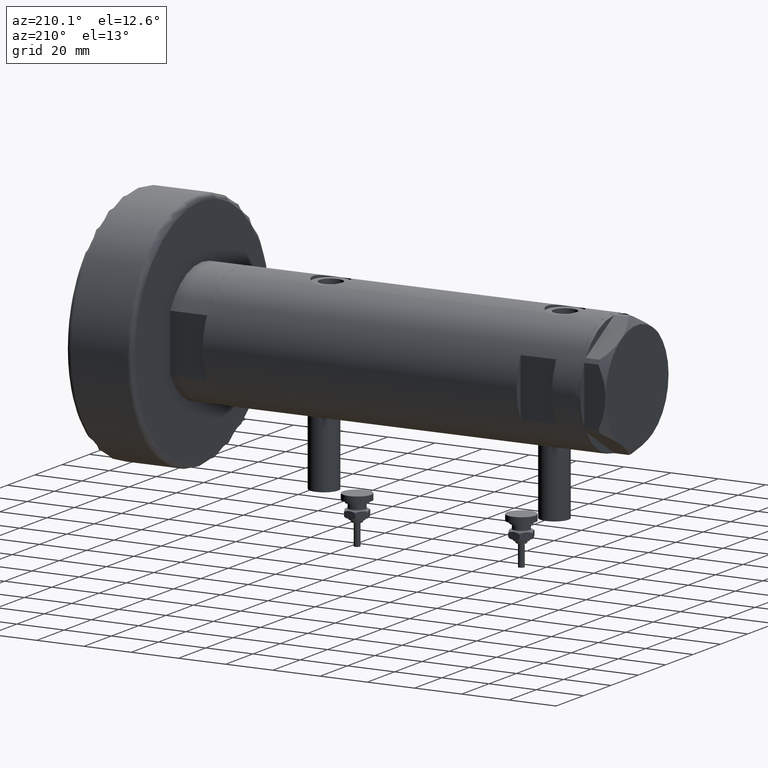
[diagram: clean part render]
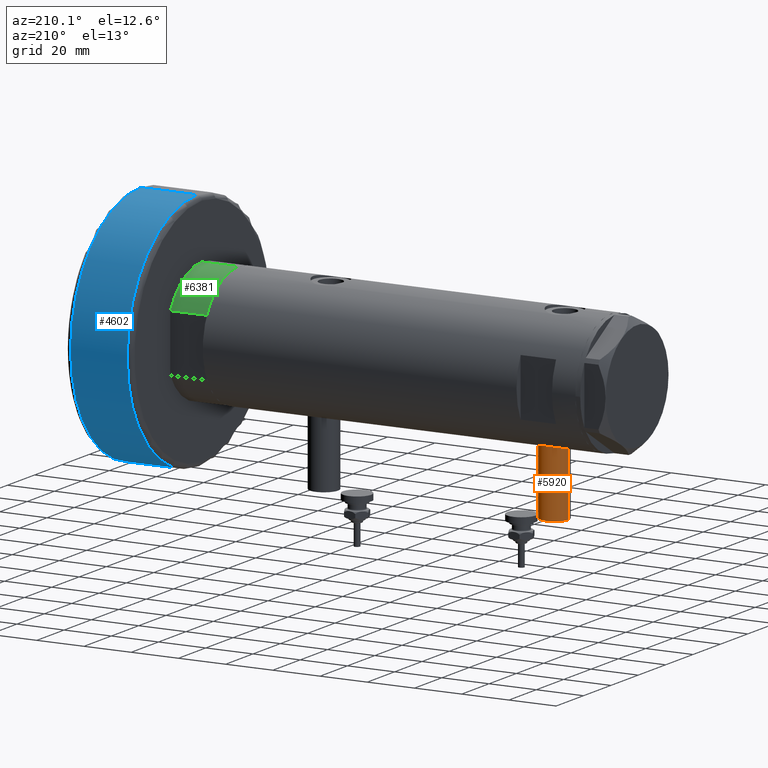
[diagram: same view with three faces highlighted in distinct colors, each labeled with its STEP entity id]
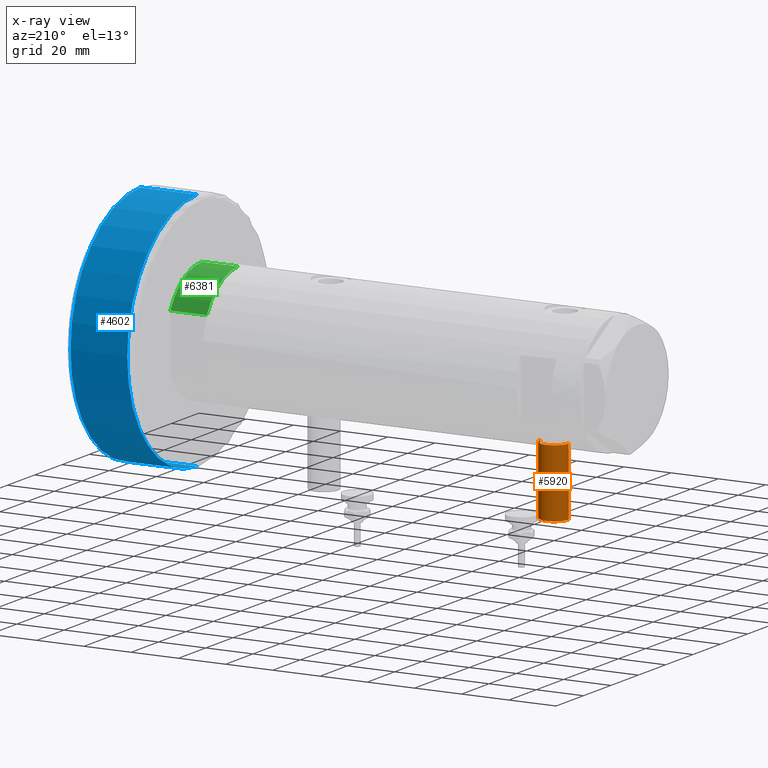
[diagram: x-ray of the same camera — body ghosted, the three highlighted faces saturated]
A machine part, auxiliary view with three faces highlighted in distinct colors.
The next image is the same camera in x-ray (body ghosted, the three faces saturated) — at least one of them is partly hidden behind the body in this view.
Their STEP definitions:

[orange] entity #5920 — the highlighted cylindrical surface (edge-blend (fillet) strip) has radius 6 mm, axis along (0, 0, 1).
#23 = EDGE_LOOP ( 'NONE', ( #6579, #2632, #2439, #6686 ) ) ;
#171 = DIRECTION ( 'NONE',  ( 1.000000000000000000, -0.000000000000000000, -0.000000000000000000 ) ) ;
#232 = LINE ( 'NONE', #2305, #5017 ) ;
#376 = VERTEX_POINT ( 'NONE', #3281 ) ;
#757 = FACE_OUTER_BOUND ( 'NONE', #23, .T. ) ;
#1031 = EDGE_CURVE ( 'NONE', #4304, #2868, #5766, .T. ) ;
#1394 = DIRECTION ( 'NONE',  ( 0.000000000000000000, 0.000000000000000000, 1.000000000000000000 ) ) ;
#1824 = DIRECTION ( 'NONE',  ( 1.000000000000000000, -0.000000000000000000, -0.000000000000000000 ) ) ;
#1873 = VECTOR ( 'NONE', #5813, 1000.000000000000000 ) ;
#1916 = DIRECTION ( 'NONE',  ( -1.000000000000000000, 0.000000000000000000, 0.000000000000000000 ) ) ;
#1925 = CARTESIAN_POINT ( 'NONE',  ( -24.80000000000000426, 0.000000000000000000, 48.95000000000000995 ) ) ;
#2305 = CARTESIAN_POINT ( 'NONE',  ( -53.40000000000000568, 7.347880794884112834E-16, 60.95000000000000284 ) ) ;
#2439 = ORIENTED_EDGE ( 'NONE', *, *, #1031, .T. ) ;
#2632 = ORIENTED_EDGE ( 'NONE', *, *, #4922, .T. ) ;
#2796 = EDGE_CURVE ( 'NONE', #4741, #2868, #2863, .T. ) ;
#2863 = LINE ( 'NONE', #3739, #1873 ) ;
#2868 = VERTEX_POINT ( 'NONE', #1925 ) ;
#2871 = AXIS2_PLACEMENT_3D ( 'NONE', #4057, #1824, #6132 ) ;
#3156 = CARTESIAN_POINT ( 'NONE',  ( -53.40000000000000568, 0.000000000000000000, 48.95000000000000995 ) ) ;
#3281 = CARTESIAN_POINT ( 'NONE',  ( -53.40000000000000568, 7.347880794884108889E-16, 60.95000000000000284 ) ) ;
#3358 = DIRECTION ( 'NONE',  ( -1.000000000000000000, 0.000000000000000000, 0.000000000000000000 ) ) ;
#3739 = CARTESIAN_POINT ( 'NONE',  ( -53.40000000000000568, 0.000000000000000000, 48.95000000000000995 ) ) ;
#3761 = CARTESIAN_POINT ( 'NONE',  ( -53.40000000000000568, 0.000000000000000000, 54.95000000000000284 ) ) ;
#3862 = CARTESIAN_POINT ( 'NONE',  ( -24.80000000000000426, 0.000000000000000000, 54.95000000000000284 ) ) ;
#4057 = CARTESIAN_POINT ( 'NONE',  ( -53.40000000000000568, 0.000000000000000000, 54.95000000000000284 ) ) ;
#4299 = DIRECTION ( 'NONE',  ( 0.000000000000000000, 0.000000000000000000, 1.000000000000000000 ) ) ;
#4304 = VERTEX_POINT ( 'NONE', #5087 ) ;
#4741 = VERTEX_POINT ( 'NONE', #3156 ) ;
#4922 = EDGE_CURVE ( 'NONE', #376, #4304, #232, .T. ) ;
#5017 = VECTOR ( 'NONE', #171, 1000.000000000000000 ) ;
#5087 = CARTESIAN_POINT ( 'NONE',  ( -24.80000000000000426, 7.347880794884108889E-16, 60.95000000000000284 ) ) ;
#5111 = AXIS2_PLACEMENT_3D ( 'NONE', #3862, #1916, #1394 ) ;
#5253 = CIRCLE ( 'NONE', #5682, 5.999999999999998224 ) ;
#5682 = AXIS2_PLACEMENT_3D ( 'NONE', #3761, #3358, #4299 ) ;
#5766 = CIRCLE ( 'NONE', #5111, 5.999999999999998224 ) ;
#5813 = DIRECTION ( 'NONE',  ( 1.000000000000000000, -0.000000000000000000, -0.000000000000000000 ) ) ;
#5920 = ADVANCED_FACE ( 'NONE', ( #757 ), #6641, .T. ) ;
#6132 = DIRECTION ( 'NONE',  ( 0.000000000000000000, 0.000000000000000000, -1.000000000000000000 ) ) ;
#6183 = EDGE_CURVE ( 'NONE', #376, #4741, #5253, .T. ) ;
#6579 = ORIENTED_EDGE ( 'NONE', *, *, #6183, .F. ) ;
#6641 = CYLINDRICAL_SURFACE ( 'NONE', #2871, 5.999999999999998224 ) ;
#6686 = ORIENTED_EDGE ( 'NONE', *, *, #2796, .F. ) ;

[blue] entity #4602 — the highlighted cylindrical surface (partial cylindrical patch) has radius 51 mm, axis along (-1, -0, 0).
#484 = DIRECTION ( 'NONE',  ( -0.000000000000000000, -0.000000000000000000, -1.000000000000000000 ) ) ;
#666 = ORIENTED_EDGE ( 'NONE', *, *, #1488, .T. ) ;
#680 = AXIS2_PLACEMENT_3D ( 'NONE', #5494, #6552, #3519 ) ;
#788 = CIRCLE ( 'NONE', #680, 50.99999999999999289 ) ;
#897 = CARTESIAN_POINT ( 'NONE',  ( 0.000000000000000000, 0.000000000000000000, 1.999999999999998224 ) ) ;
#905 = VERTEX_POINT ( 'NONE', #3330 ) ;
#958 = VERTEX_POINT ( 'NONE', #5804 ) ;
#1001 = CARTESIAN_POINT ( 'NONE',  ( 50.99999999999999289, 6.245698675651499656E-15, 28.00000000000000000 ) ) ;
#1092 = VERTEX_POINT ( 'NONE', #1364 ) ;
#1102 = EDGE_CURVE ( 'NONE', #905, #5722, #788, .T. ) ;
#1364 = CARTESIAN_POINT ( 'NONE',  ( -50.99999999999999289, 0.000000000000000000, 1.999999999999998224 ) ) ;
#1488 = EDGE_CURVE ( 'NONE', #5722, #958, #2569, .T. ) ;
#1735 = VECTOR ( 'NONE', #484, 1000.000000000000000 ) ;
#1988 = VECTOR ( 'NONE', #6119, 1000.000000000000000 ) ;
#2026 = CARTESIAN_POINT ( 'NONE',  ( 50.99999999999999289, 6.245698675651499656E-15, 26.00000000000000355 ) ) ;
#2067 = EDGE_CURVE ( 'NONE', #905, #1092, #5672, .T. ) ;
#2569 = LINE ( 'NONE', #1001, #1988 ) ;
#2668 = DIRECTION ( 'NONE',  ( -0.000000000000000000, -0.000000000000000000, -1.000000000000000000 ) ) ;
#2971 = DIRECTION ( 'NONE',  ( 0.000000000000000000, 0.000000000000000000, 1.000000000000000000 ) ) ;
#3067 = CARTESIAN_POINT ( 'NONE',  ( 0.000000000000000000, 0.000000000000000000, 28.00000000000000000 ) ) ;
#3099 = CIRCLE ( 'NONE', #6455, 50.99999999999999289 ) ;
#3330 = CARTESIAN_POINT ( 'NONE',  ( -50.99999999999999289, 0.000000000000000000, 26.00000000000000355 ) ) ;
#3519 = DIRECTION ( 'NONE',  ( 1.000000000000000000, 0.000000000000000000, 0.000000000000000000 ) ) ;
#3642 = CYLINDRICAL_SURFACE ( 'NONE', #4566, 50.99999999999999289 ) ;
#3702 = DIRECTION ( 'NONE',  ( -1.000000000000000000, 0.000000000000000000, 0.000000000000000000 ) ) ;
#3909 = DIRECTION ( 'NONE',  ( 1.000000000000000000, 0.000000000000000000, 0.000000000000000000 ) ) ;
#4533 = ORIENTED_EDGE ( 'NONE', *, *, #6604, .T. ) ;
#4566 = AXIS2_PLACEMENT_3D ( 'NONE', #3067, #2668, #3702 ) ;
#4602 = ADVANCED_FACE ( 'NONE', ( #5709 ), #3642, .T. ) ;
#4609 = CARTESIAN_POINT ( 'NONE',  ( -50.99999999999999289, 0.000000000000000000, 28.00000000000000000 ) ) ;
#4856 = EDGE_LOOP ( 'NONE', ( #5412, #666, #4533, #6683 ) ) ;
#5412 = ORIENTED_EDGE ( 'NONE', *, *, #1102, .T. ) ;
#5494 = CARTESIAN_POINT ( 'NONE',  ( 0.000000000000000000, 0.000000000000000000, 26.00000000000000355 ) ) ;
#5672 = LINE ( 'NONE', #4609, #1735 ) ;
#5709 = FACE_OUTER_BOUND ( 'NONE', #4856, .T. ) ;
#5722 = VERTEX_POINT ( 'NONE', #2026 ) ;
#5804 = CARTESIAN_POINT ( 'NONE',  ( 50.99999999999999289, 6.245698675651499656E-15, 1.999999999999998224 ) ) ;
#6119 = DIRECTION ( 'NONE',  ( -0.000000000000000000, -0.000000000000000000, -1.000000000000000000 ) ) ;
#6455 = AXIS2_PLACEMENT_3D ( 'NONE', #897, #2971, #3909 ) ;
#6552 = DIRECTION ( 'NONE',  ( -0.000000000000000000, -0.000000000000000000, -1.000000000000000000 ) ) ;
#6604 = EDGE_CURVE ( 'NONE', #958, #1092, #3099, .T. ) ;
#6683 = ORIENTED_EDGE ( 'NONE', *, *, #2067, .F. ) ;

[green] entity #6381 — the highlighted cylindrical surface (partial cylindrical patch) has radius 26 mm, axis along (-1, -0, 0).
#17 = AXIS2_PLACEMENT_3D ( 'NONE', #2644, #5175, #4150 ) ;
#203 = EDGE_CURVE ( 'NONE', #4750, #4580, #236, .T. ) ;
#236 = CIRCLE ( 'NONE', #17, 26.00000000000000355 ) ;
#549 = CARTESIAN_POINT ( 'NONE',  ( -26.00000000000000355, 0.000000000000000000, 15.50000000000000000 ) ) ;
#613 = CARTESIAN_POINT ( 'NONE',  ( -12.12435565298215145, 23.00000000000000355, 0.000000000000000000 ) ) ;
#1135 = EDGE_CURVE ( 'NONE', #4862, #4750, #5071, .T. ) ;
#1164 = EDGE_CURVE ( 'NONE', #4580, #3599, #4152, .T. ) ;
#1166 = ORIENTED_EDGE ( 'NONE', *, *, #203, .F. ) ;
#1662 = FACE_OUTER_BOUND ( 'NONE', #2536, .T. ) ;
#1886 = VECTOR ( 'NONE', #5588, 1000.000000000000000 ) ;
#2318 = ORIENTED_EDGE ( 'NONE', *, *, #1135, .F. ) ;
#2462 = CARTESIAN_POINT ( 'NONE',  ( 0.000000000000000000, 0.000000000000000000, 0.000000000000000000 ) ) ;
#2536 = EDGE_LOOP ( 'NONE', ( #5032, #1166, #2318, #5427 ) ) ;
#2644 = CARTESIAN_POINT ( 'NONE',  ( 0.000000000000000000, 0.000000000000000000, 15.50000000000000000 ) ) ;
#2676 = CARTESIAN_POINT ( 'NONE',  ( 0.000000000000000000, 0.000000000000000000, 15.50000000000000000 ) ) ;
#3124 = CARTESIAN_POINT ( 'NONE',  ( -26.00000000000000355, 0.000000000000000000, 0.000000000000000000 ) ) ;
#3597 = VECTOR ( 'NONE', #6235, 1000.000000000000000 ) ;
#3599 = VERTEX_POINT ( 'NONE', #3124 ) ;
#3611 = CIRCLE ( 'NONE', #6328, 26.00000000000000355 ) ;
#4147 = DIRECTION ( 'NONE',  ( -1.000000000000000000, 0.000000000000000000, 0.000000000000000000 ) ) ;
#4150 = DIRECTION ( 'NONE',  ( 1.000000000000000000, 0.000000000000000000, 0.000000000000000000 ) ) ;
#4152 = LINE ( 'NONE', #5142, #3597 ) ;
#4580 = VERTEX_POINT ( 'NONE', #549 ) ;
#4705 = AXIS2_PLACEMENT_3D ( 'NONE', #2676, #5784, #4147 ) ;
#4750 = VERTEX_POINT ( 'NONE', #5214 ) ;
#4862 = VERTEX_POINT ( 'NONE', #613 ) ;
#5032 = ORIENTED_EDGE ( 'NONE', *, *, #1164, .F. ) ;
#5071 = LINE ( 'NONE', #5209, #1886 ) ;
#5142 = CARTESIAN_POINT ( 'NONE',  ( -26.00000000000000355, 0.000000000000000000, 15.50000000000000000 ) ) ;
#5175 = DIRECTION ( 'NONE',  ( 0.000000000000000000, 0.000000000000000000, 1.000000000000000000 ) ) ;
#5209 = CARTESIAN_POINT ( 'NONE',  ( -12.12435565298215145, 23.00000000000000355, 0.000000000000000000 ) ) ;
#5214 = CARTESIAN_POINT ( 'NONE',  ( -12.12435565298214613, 23.00000000000000355, 15.50000000000000000 ) ) ;
#5243 = CYLINDRICAL_SURFACE ( 'NONE', #4705, 26.00000000000000355 ) ;
#5427 = ORIENTED_EDGE ( 'NONE', *, *, #5587, .T. ) ;
#5587 = EDGE_CURVE ( 'NONE', #4862, #3599, #3611, .T. ) ;
#5588 = DIRECTION ( 'NONE',  ( -0.000000000000000000, -0.000000000000000000, 1.000000000000000000 ) ) ;
#5784 = DIRECTION ( 'NONE',  ( -0.000000000000000000, -0.000000000000000000, -1.000000000000000000 ) ) ;
#5947 = DIRECTION ( 'NONE',  ( 1.000000000000000000, 0.000000000000000000, 0.000000000000000000 ) ) ;
#6235 = DIRECTION ( 'NONE',  ( -0.000000000000000000, -0.000000000000000000, -1.000000000000000000 ) ) ;
#6328 = AXIS2_PLACEMENT_3D ( 'NONE', #2462, #6468, #5947 ) ;
#6381 = ADVANCED_FACE ( 'NONE', ( #1662 ), #5243, .T. ) ;
#6468 = DIRECTION ( 'NONE',  ( 0.000000000000000000, 0.000000000000000000, 1.000000000000000000 ) ) ;